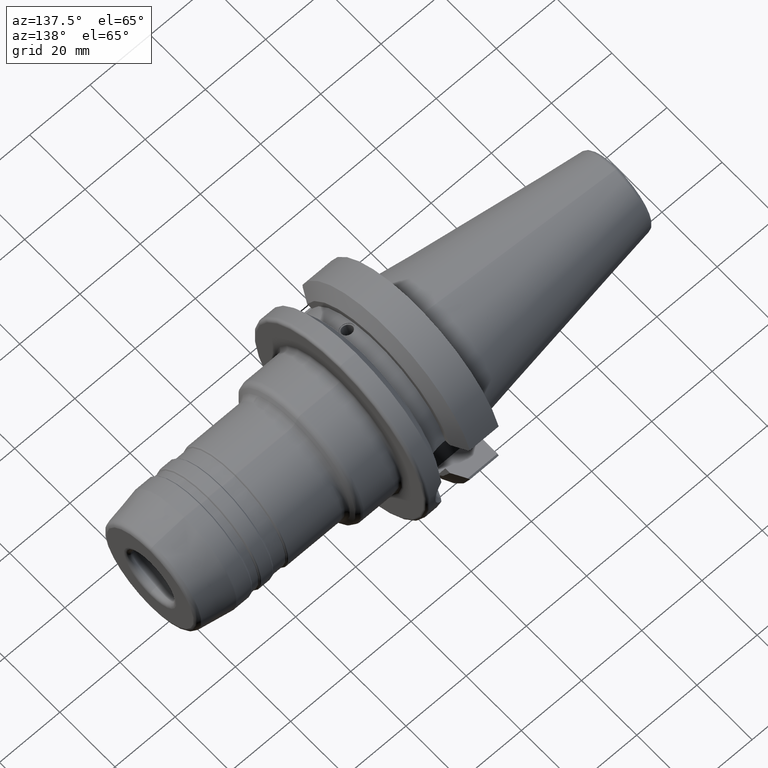
[diagram: clean part render]
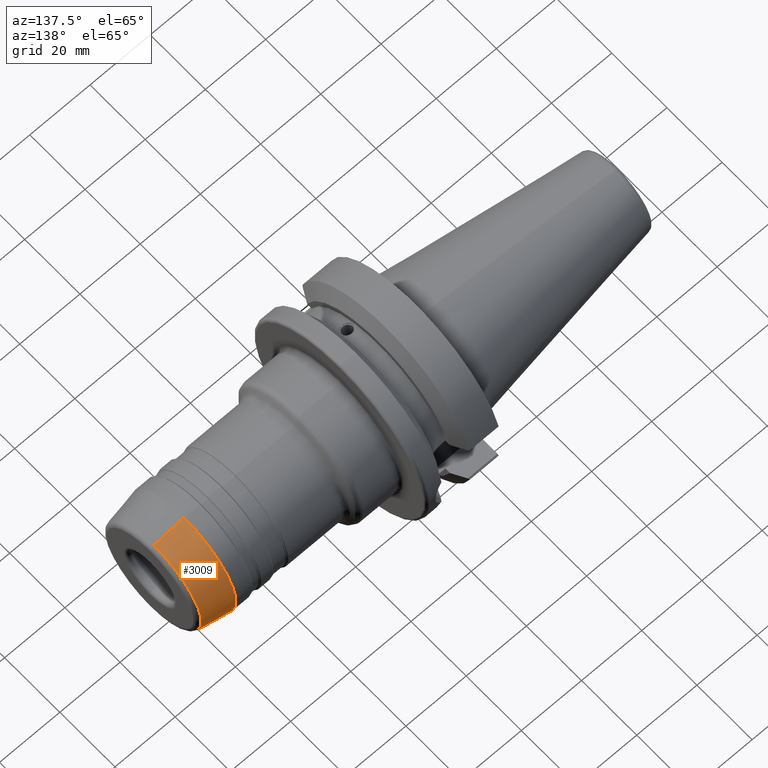
[diagram: same view with one face highlighted and labeled with its STEP entity id]
A machine part, auxiliary view. The second image highlights one B-rep face of the part: STEP entity #3009.
In plain terms, the highlighted conical surface has half-angle 10 deg.
Its self-contained STEP definition (entity closure, byte-faithful):
#399=CARTESIAN_POINT('',(8.876047226650E1,0.E0,0.E0));
#400=DIRECTION('',(1.E0,0.E0,0.E0));
#401=DIRECTION('',(0.E0,0.E0,-1.E0));
#402=AXIS2_PLACEMENT_3D('',#399,#400,#401);
#404=DIRECTION('',(-9.848077530122E-1,0.E0,-1.736481776670E-1));
#405=VECTOR('',#404,1.012765852423E1);
#406=CARTESIAN_POINT('',(8.876047226650E1,0.E0,-1.721856218275E1));
#407=LINE('',#406,#405);
#408=DIRECTION('',(-9.848077530122E-1,0.E0,1.736481776670E-1));
#409=VECTOR('',#408,1.012765852423E1);
#410=CARTESIAN_POINT('',(8.876047226650E1,0.E0,1.721856218275E1));
#411=LINE('',#410,#409);
#432=CARTESIAN_POINT('',(7.878667563198E1,0.E0,0.E0));
#433=DIRECTION('',(1.E0,0.E0,0.E0));
#434=DIRECTION('',(0.E0,0.E0,-1.E0));
#435=AXIS2_PLACEMENT_3D('',#432,#433,#434);
#2248=CARTESIAN_POINT('',(8.876047226650E1,0.E0,-1.721856218275E1));
#2250=VERTEX_POINT('',#2248);
#2251=CARTESIAN_POINT('',(7.878667563198E1,0.E0,-1.897721162952E1));
#2252=VERTEX_POINT('',#2251);
#2308=CARTESIAN_POINT('',(8.876047226650E1,0.E0,1.721856218275E1));
#2310=VERTEX_POINT('',#2308);
#2311=CARTESIAN_POINT('',(7.878667563198E1,0.E0,1.897721162952E1));
#2312=VERTEX_POINT('',#2311);
#2995=CARTESIAN_POINT('',(8.377357394924E1,0.E0,0.E0));
#2996=DIRECTION('',(-1.E0,0.E0,0.E0));
#2997=DIRECTION('',(0.E0,0.E0,-1.E0));
#2998=AXIS2_PLACEMENT_3D('',#2995,#2996,#2997);
#2999=CONICAL_SURFACE('',#2998,1.809788690614E1,1.000000000001E1);
#3001=ORIENTED_EDGE('',*,*,#3000,.F.);
#3002=ORIENTED_EDGE('',*,*,#2990,.T.);
#3004=ORIENTED_EDGE('',*,*,#3003,.T.);
#3006=ORIENTED_EDGE('',*,*,#3005,.F.);
#3007=EDGE_LOOP('',(#3001,#3002,#3004,#3006));
#3008=FACE_OUTER_BOUND('',#3007,.F.);
#3009=ADVANCED_FACE('',(#3008),#2999,.T.);
#403=CIRCLE('',#402,1.721856218275E1);
#436=CIRCLE('',#435,1.897721162952E1);
#2990=EDGE_CURVE('',#2250,#2310,#403,.T.);
#3000=EDGE_CURVE('',#2250,#2252,#407,.T.);
#3003=EDGE_CURVE('',#2310,#2312,#411,.T.);
#3005=EDGE_CURVE('',#2252,#2312,#436,.T.);